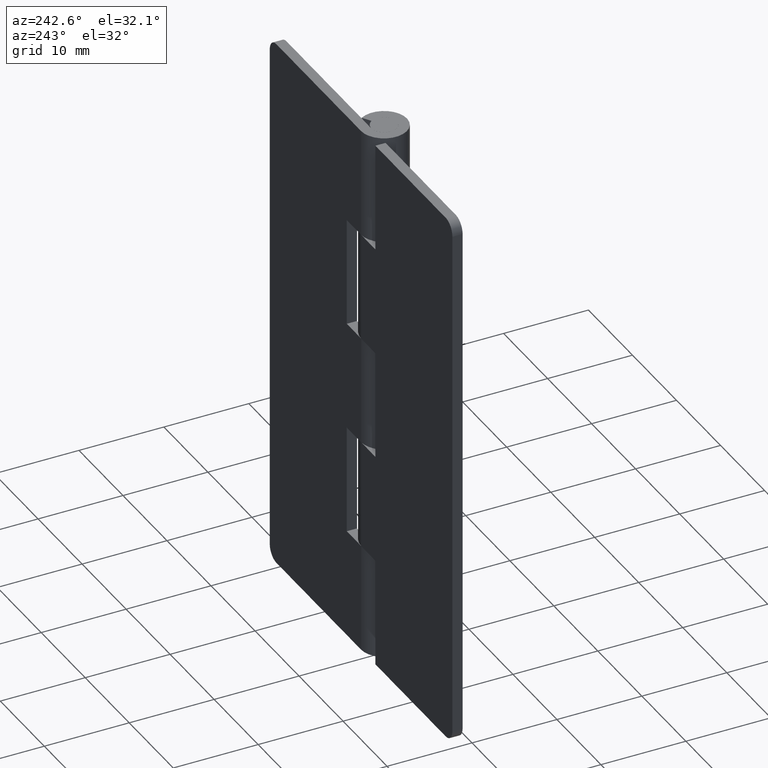
[diagram: clean part render]
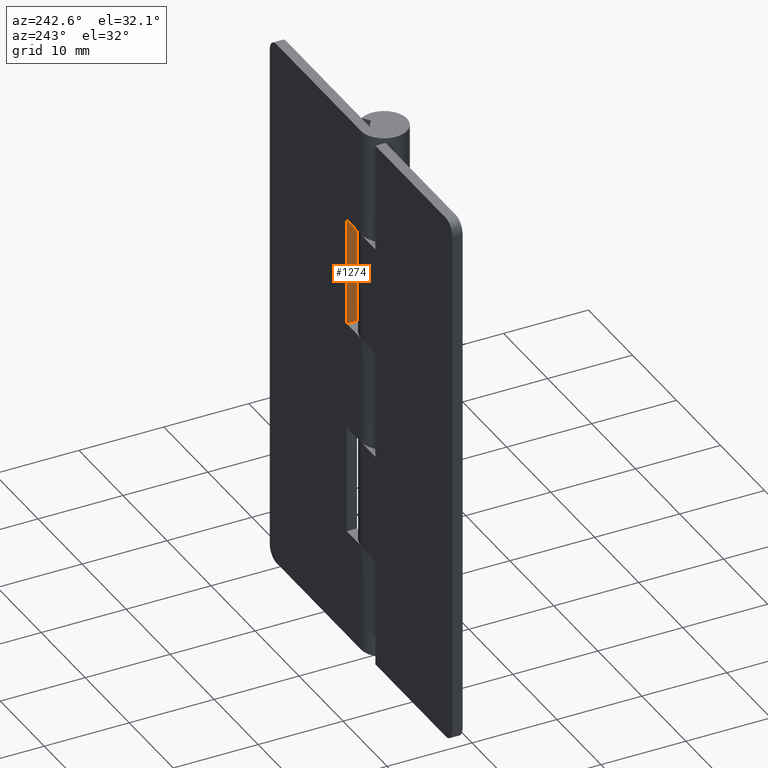
[diagram: same view with one face highlighted and labeled with its STEP entity id]
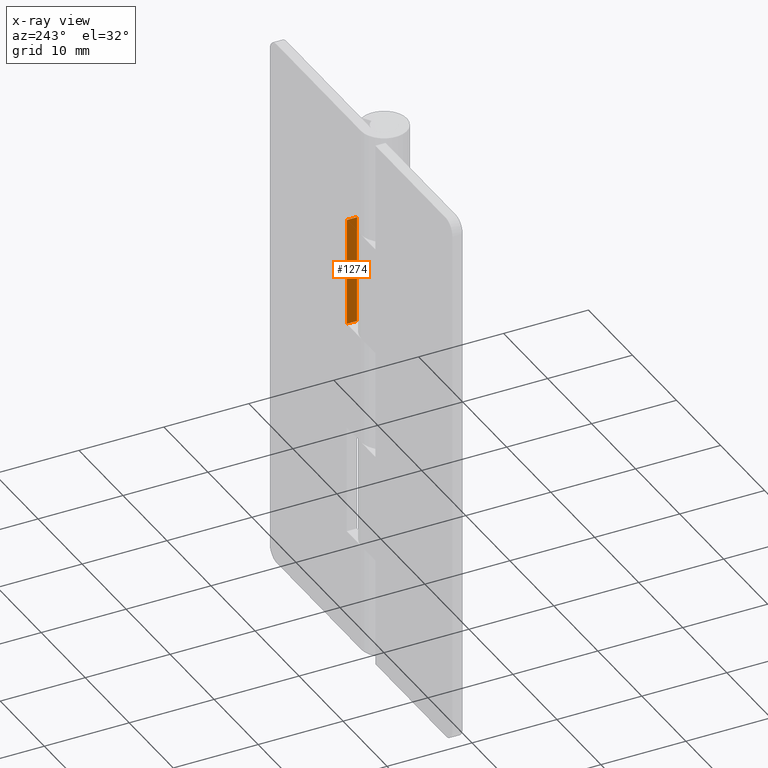
[diagram: x-ray of the same camera — body ghosted, the highlighted face saturated]
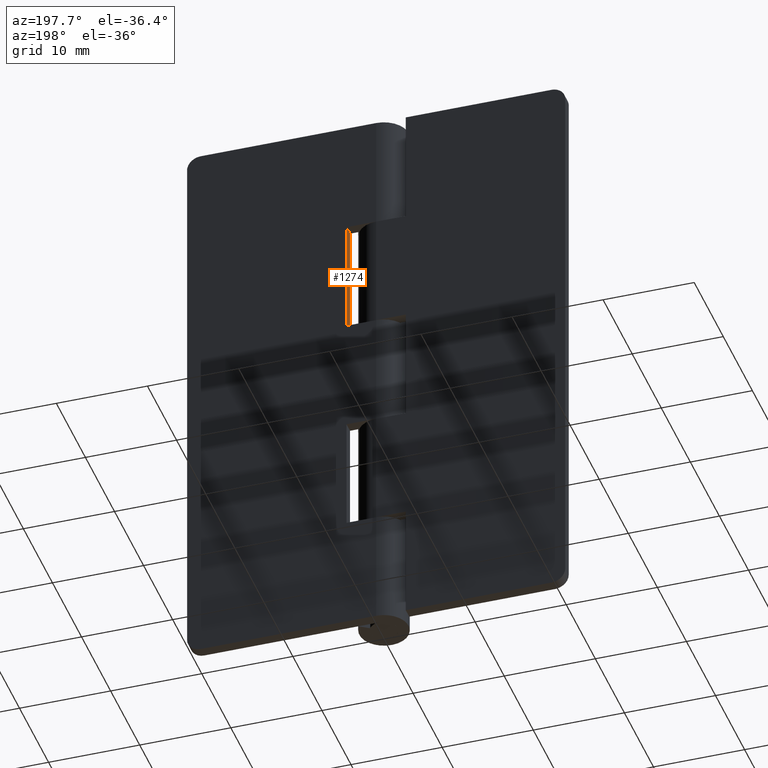
[diagram: same view with one face highlighted and labeled with its STEP entity id]
A machine part, auxiliary view. The second image highlights one B-rep face of the part: STEP entity #1274.
The next image is the same camera in x-ray: the body ghosted, the highlighted face saturated — about 0% of this face is hidden behind the body in this view.
A second angle (auxiliary view) of the same face is appended — the face is thin or edge-on in the first view.
In plain terms, the highlighted face is a freeform B-spline surface patch.
Its self-contained STEP definition (entity closure, byte-faithful):
#1176=CARTESIAN_POINT('',(3.250000000000000,1.499999999999946,38.399985999999998));
#1177=VERTEX_POINT('',#1176);
#1183=CARTESIAN_POINT('',(3.250000000000000,2.700001000000000,38.399985999999998));
#1184=VERTEX_POINT('',#1183);
#1185=CARTESIAN_POINT('',(3.250000000000000,1.499999999999946,38.399985999999998));
#1186=CARTESIAN_POINT('',(3.250000000000000,2.700001000000000,38.399985999999998));
#1187=QUASI_UNIFORM_CURVE('',1,(#1185,#1186),.UNSPECIFIED.,.F.,.U.);
#1188=EDGE_CURVE('',#1177,#1184,#1187,.T.);
#1247=CARTESIAN_POINT('',(3.250000000000000,1.440059952375778,51.839349439782318));
#1248=CARTESIAN_POINT('',(3.250000000000000,1.440059952375778,37.760626475745241));
#1249=CARTESIAN_POINT('',(3.250000000000000,2.759941079810703,51.839349439782318));
#1250=CARTESIAN_POINT('',(3.250000000000000,2.759941079810703,37.760626475745241));
#1251=B_SPLINE_SURFACE_WITH_KNOTS('',1,1,((#1247,#1249),(#1248,#1250)),.UNSPECIFIED.,.F.,.F.,.U.,(2,2),(2,2),(0.0,14.078722964037080),(0.041708334948495,0.958291687403247),.UNSPECIFIED.);
#1252=CARTESIAN_POINT('',(3.250000000000000,1.499999999999946,51.199989000000002));
#1253=VERTEX_POINT('',#1252);
#1254=CARTESIAN_POINT('',(3.250000000000000,1.499999999999946,38.399985999999998));
#1255=CARTESIAN_POINT('',(3.250000000000000,1.499999999999946,51.199989000000002));
#1256=QUASI_UNIFORM_CURVE('',1,(#1254,#1255),.UNSPECIFIED.,.F.,.U.);
#1257=EDGE_CURVE('',#1177,#1253,#1256,.T.);
#1258=ORIENTED_EDGE('',*,*,#1257,.T.);
#1259=CARTESIAN_POINT('',(3.250000000000000,2.700001000000000,51.199989000000002));
#1260=VERTEX_POINT('',#1259);
#1261=CARTESIAN_POINT('',(3.250000000000000,1.499999999999946,51.199989000000002));
#1262=CARTESIAN_POINT('',(3.250000000000000,2.700001000000000,51.199989000000002));
#1263=QUASI_UNIFORM_CURVE('',1,(#1261,#1262),.UNSPECIFIED.,.F.,.U.);
#1264=EDGE_CURVE('',#1253,#1260,#1263,.T.);
#1265=ORIENTED_EDGE('',*,*,#1264,.T.);
#1266=CARTESIAN_POINT('',(3.250000000000000,2.700001000000000,51.199989000000002));
#1267=CARTESIAN_POINT('',(3.250000000000000,2.700001000000000,38.399985999999998));
#1268=QUASI_UNIFORM_CURVE('',1,(#1266,#1267),.UNSPECIFIED.,.F.,.U.);
#1269=EDGE_CURVE('',#1260,#1184,#1268,.T.);
#1270=ORIENTED_EDGE('',*,*,#1269,.T.);
#1271=ORIENTED_EDGE('',*,*,#1188,.F.);
#1272=EDGE_LOOP('',(#1258,#1265,#1270,#1271));
#1273=FACE_OUTER_BOUND('',#1272,.T.);
#1274=ADVANCED_FACE('',(#1273),#1251,.F.);